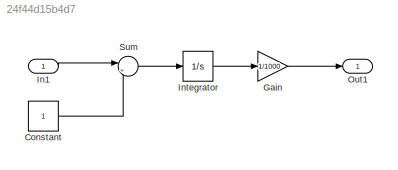
MODEL slx_24f44d15b4d7
KIND model
CONFIG AbsTol = auto
CONFIG EnableMultiTasking = off
CONFIG FixedStep = 1e-3
CONFIG MaxStep = auto
CONFIG MinStep = auto
CONFIG RelTol = 1e-3
CONFIG SampleTimeConstraint = Unconstrained
CONFIG SolverName = ode4
CONFIG StartTime = 0.0
CONFIG StopTime = 0.001
BLOCK [Constant] Constant
BLOCK [Gain] Gain
  Gain = 1/1000
BLOCK [Inport] In1
BLOCK [Integrator] Integrator
  Ports = [1, 1]
BLOCK [Outport] Out1
BLOCK [Sum] Sum
  Inputs = |++
  Ports = [2, 1]
LINE Constant:1 -> Sum:2
LINE Gain:1 -> Out1:1
LINE In1:1 -> Sum:1
LINE Integrator:1 -> Gain:1
LINE Sum:1 -> Integrator:1
